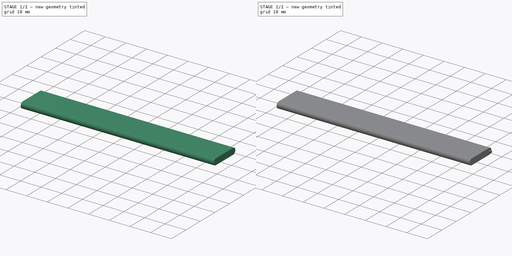
[diagram: build sequence overview — one tinted view per stage of 2, left to right]
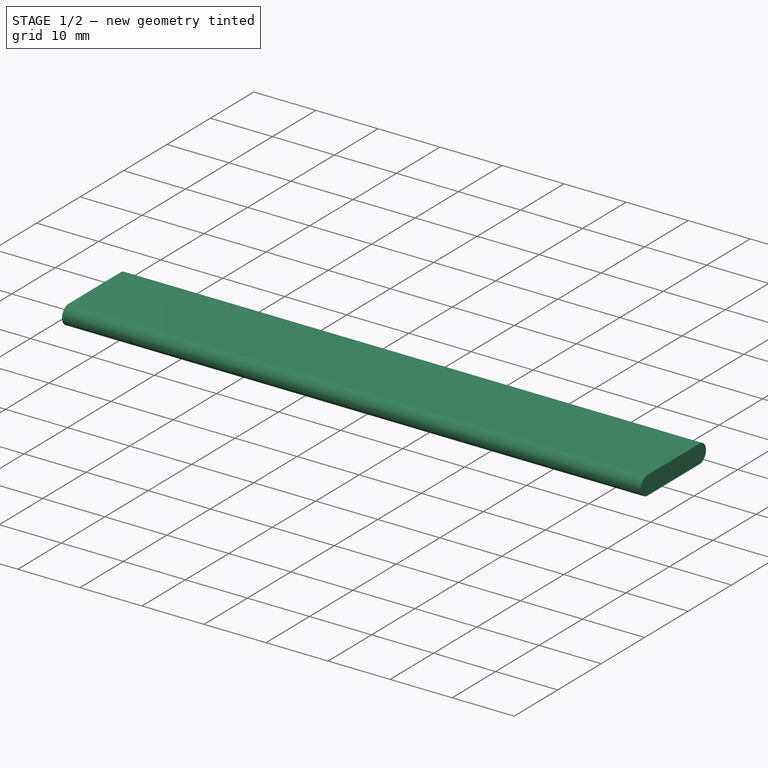
[diagram: stage 1 of 2 — iso view after this stage's code; geometry added in this stage tinted green]
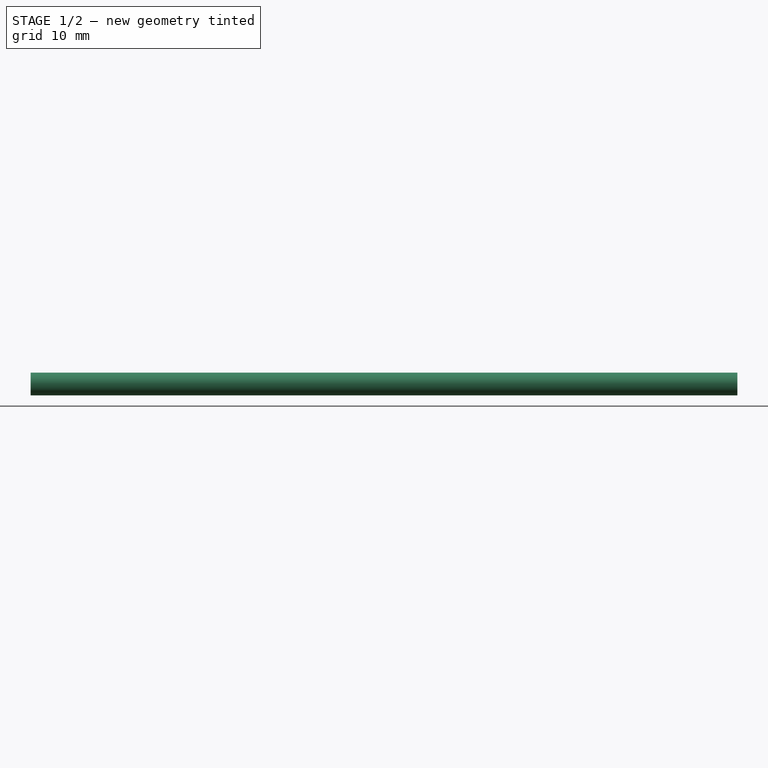
[diagram: stage 1 of 2 — front view after this stage's code; geometry added in this stage tinted green]
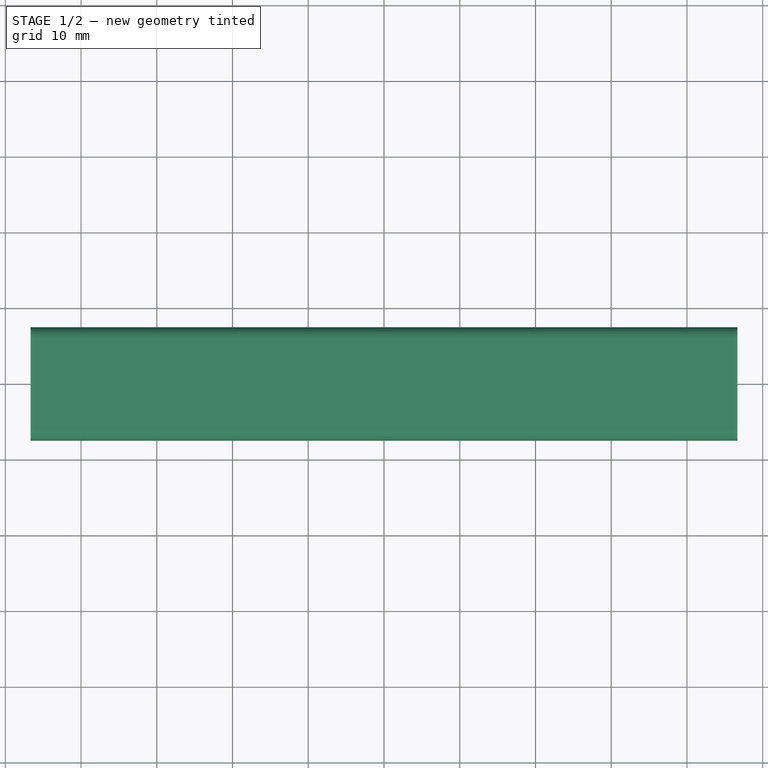
[diagram: stage 1 of 2 — top view after this stage's code; geometry added in this stage tinted green]
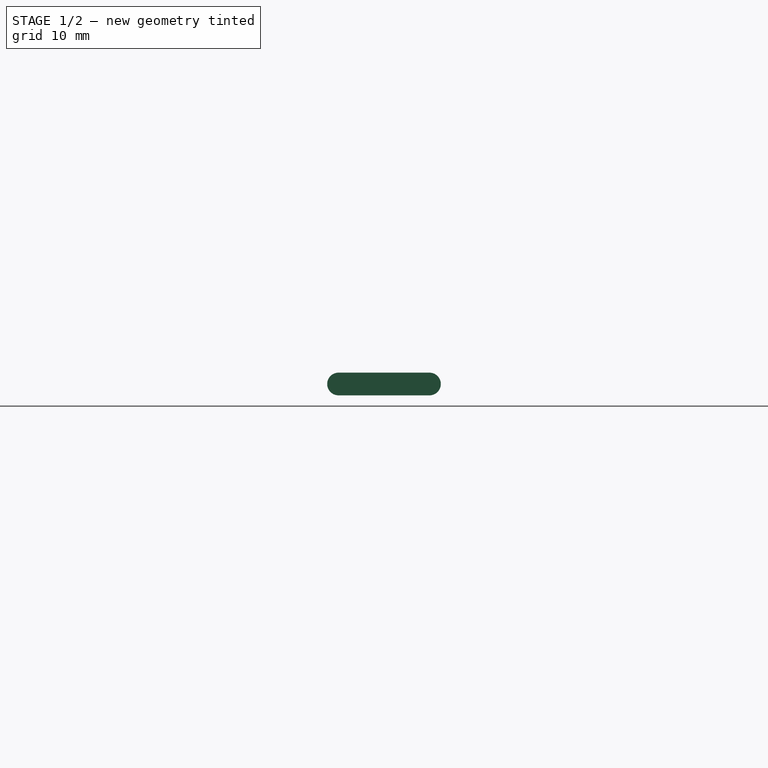
[diagram: stage 1 of 2 — right view after this stage's code; geometry added in this stage tinted green]
FCSTD DOCUMENT  (FreeCAD 0.19R24291 (Git))
Label: HB9500_x10
License: All rights reserved
LicenseURL: http://en.wikipedia.org/wiki/All_rights_reserved
objects: App::Link×11, Sketcher::SketchObject×4, PartDesign::Pad×3, App::DocumentObjectGroup×2, PartDesign::Line×2, PartDesign::CoordinateSystem×1, App::FeaturePython×1, PartDesign::Pocket×1, PartDesign::Body×1, App::Part×1
note: 16 computed .brp shape members not serialized (recipe doc carries the construction recipe); baked Part::Feature solids carry a one-line shape summary decoded from their .brp
EXTERNAL_REF file=parts/left_asm.FCStd obj=LCS_Origin
EXTERNAL_REF file=parts/left_asm.FCStd obj=Model
EXTERNAL_REF file=parts/center_asm.FCStd obj=RightPointC
EXTERNAL_REF file=parts/right_asm.FCStd obj=LeftPointR
EXTERNAL_REF file=parts/right_asm.FCStd obj=Model
EXTERNAL_REF file=parts/left_asm.FCStd obj=CoverAxisL
EXTERNAL_REF file=parts/center_asm.FCStd obj=LeftPointC
EXTERNAL_REF file=parts/left_asm.FCStd obj=RightPointL
EXTERNAL_REF file=parts/center_asm.FCStd obj=Model

FEATURE [PartDesign::CoordinateSystem] LCS_Origin
  AttacherType = Attacher::AttachEngine3D
  MapMode = 2
  Support = -> [X_Axis]
FEATURE [App::DocumentObjectGroup] Constraints
FEATURE [App::FeaturePython] Variables  # WARN: FeaturePython — macro-defined, semantics opaque (R4)
FEATURE [App::Link] left_asm
  AssemblyType = Asm4EE
  AttachedBy = #LCS_Origin
  AttachedTo = Parent Assembly#LCS_Origin
  LinkedObject = -> <external parts/left_asm.FCStd>#Model
  expr: Placement = LCS_Origin.Placement * AttachmentOffset * left_asm#LCS_Origin.Placement ^ -1
FEATURE [App::Link] right_asm
  AssemblyType = Asm4EE
  AttachedBy = #LeftPointR
  AttachedTo = center_asm007#RightPointC
  LinkPlacement = pos=(85.5,-2.833e-13,-1.746e-13) rot=(0,0,1;0rad)
  LinkedObject = -> <external parts/right_asm.FCStd>#Model
  Placement = pos=(85.5,-2.833e-13,-1.746e-13) rot=(0,0,1;0rad)
  expr: Placement = center_asm007.Placement * center_asm#RightPointC.Placement * AttachmentOffset * right_asm#LeftPointR.Placement ^ -1
FEATURE [Sketcher::SketchObject] Sketch
  FullyConstrained = true
  MapMode = 5
  Placement = pos=(0,0,0) rot=(0.57735,0.57735,0.57735;2.0944rad)
  Support = -> [YZ_Plane001]
  sketch-geometry (4):
    g0: LineSegment StartX=-6 StartY=1.5 StartZ=0 EndX=6 EndY=1.5 EndZ=0
    g1: LineSegment StartX=6 StartY=-1.5 StartZ=0 EndX=-6 EndY=-1.5 EndZ=0
    g2: ArcOfCircle CenterX=-6 CenterY=0 CenterZ=0 NormalX=0 NormalY=0 NormalZ=1 AngleXU=0 Radius=1.5 StartAngle=1.5708 EndAngle=4.71239
    g3: ArcOfCircle CenterX=6 CenterY=0 CenterZ=0 NormalX=0 NormalY=0 NormalZ=1 AngleXU=0 Radius=1.5 StartAngle=4.71239 EndAngle=7.85398
  constraints (9):
    c: Horizontal(g0)
    c: Tangent(g2,g0) = 1.5708
    c: Tangent(g2,g1) = 1.5708
    c: Tangent(g0,g3) = 1.5708
    c: Tangent(g1,g3) = 1.5708
    c: Symmetric(g2,g3,g-2)
    c: PointOnObject(g2,g-1)
    c: Radius(g2) = 1.5
    c: DistanceX(g0,g0) = 12
FEATURE [PartDesign::Pad] Pad
  Direction = (1,1,1)
  Length = 93.3
  Length2 = 100
  Midplane = true
  Placement = pos=(0,0,0) rot=(0.57735,0.57735,0.57735;2.0944rad)
  Profile = -> Sketch
  Type = 0
FEATURE [Sketcher::SketchObject] Sketch001
  ExternalGeometry = -> [Pad]
  FullyConstrained = true
  MapMode = 5
  Placement = pos=(6e-16,-8e-16,-1.5) rot=(0.707107,0.707107,0;3.14159rad)
  Support = -> [Pad]
  sketch-geometry (8):
    g0: LineSegment StartX=-4 StartY=45.65 StartZ=0 EndX=4 EndY=45.65 EndZ=0
    g1: LineSegment StartX=4 StartY=45.65 StartZ=0 EndX=4 EndY=-45.65 EndZ=0
    g2: LineSegment StartX=4 StartY=-45.65 StartZ=0 EndX=-4 EndY=-45.65 EndZ=0
    g3: LineSegment StartX=-4 StartY=-45.65 StartZ=0 EndX=-4 EndY=45.65 EndZ=0
    g4: LineSegment StartX=-4 StartY=-45.65 StartZ=0 EndX=-6 EndY=-46.65 EndZ=0
    g5: LineSegment StartX=4 StartY=-45.65 StartZ=0 EndX=6 EndY=-46.65 EndZ=0
    g6: LineSegment StartX=-6 StartY=46.65 StartZ=0 EndX=-4 EndY=45.65 EndZ=0
    g7: LineSegment StartX=6 StartY=46.65 StartZ=0 EndX=4 EndY=45.65 EndZ=0
  constraints (20):
    c: Coincident(g0,g1)
    c: Coincident(g1,g2)
    c: Coincident(g2,g3)
    c: Coincident(g3,g0)
    c: Horizontal(g0)
    c: Horizontal(g2)
    c: Vertical(g1)
    c: Coincident(g4,g2)
    c: Coincident(g4,g-4)
    c: Coincident(g5,g1)
    c: Coincident(g5,g-4)
    c: Coincident(g6,g-3)
    c: Coincident(g6,g0)
    c: Coincident(g7,g-3)
    c: Coincident(g7,g0)
    c: Equal(g4,g5)
    c: Equal(g5,g6)
    c: Equal(g6,g7)
    c: DistanceY(g0,g7) = 1
    c: DistanceX(g6,g0) = 2
FEATURE [PartDesign::Pocket] Pocket
  BaseFeature = -> Pad
  Length = 1.5
  Length2 = 100
  Placement = pos=(0,0,0) rot=(0.57735,0.57735,0.57735;2.0944rad)
  Profile = -> Sketch001
  Type = 0
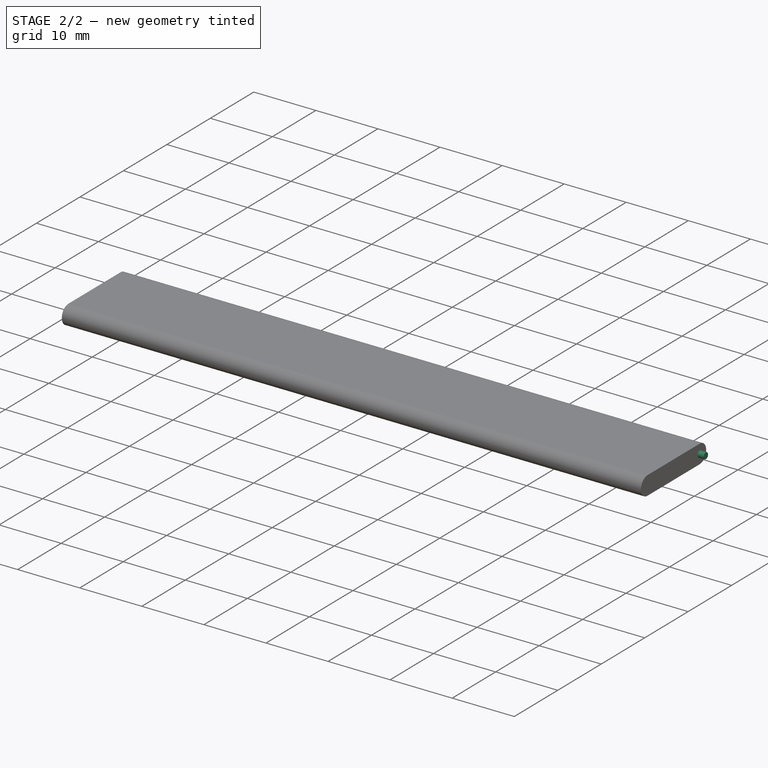
[diagram: stage 2 of 2 — iso view after this stage's code; geometry added in this stage tinted green]
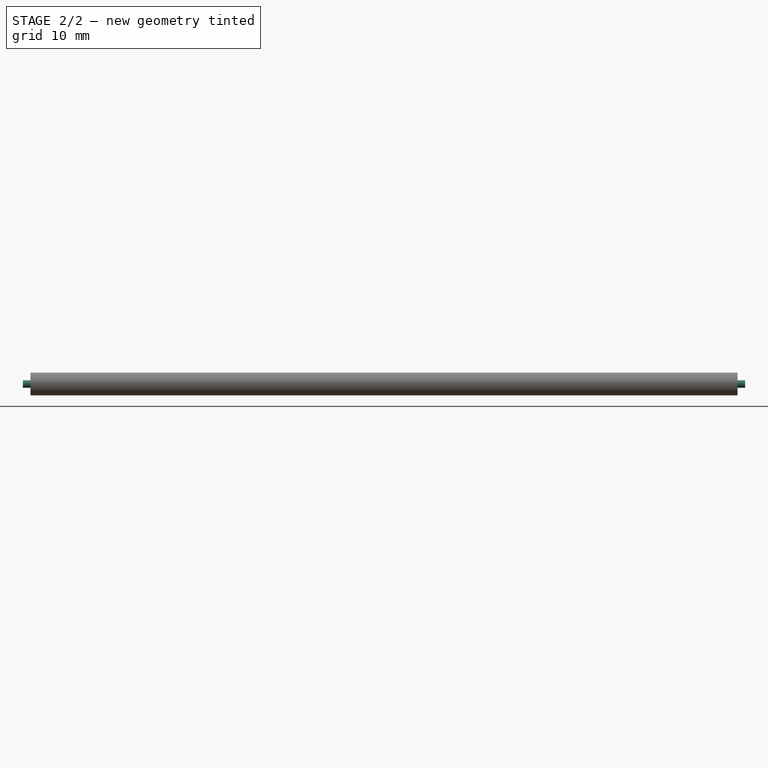
[diagram: stage 2 of 2 — front view after this stage's code; geometry added in this stage tinted green]
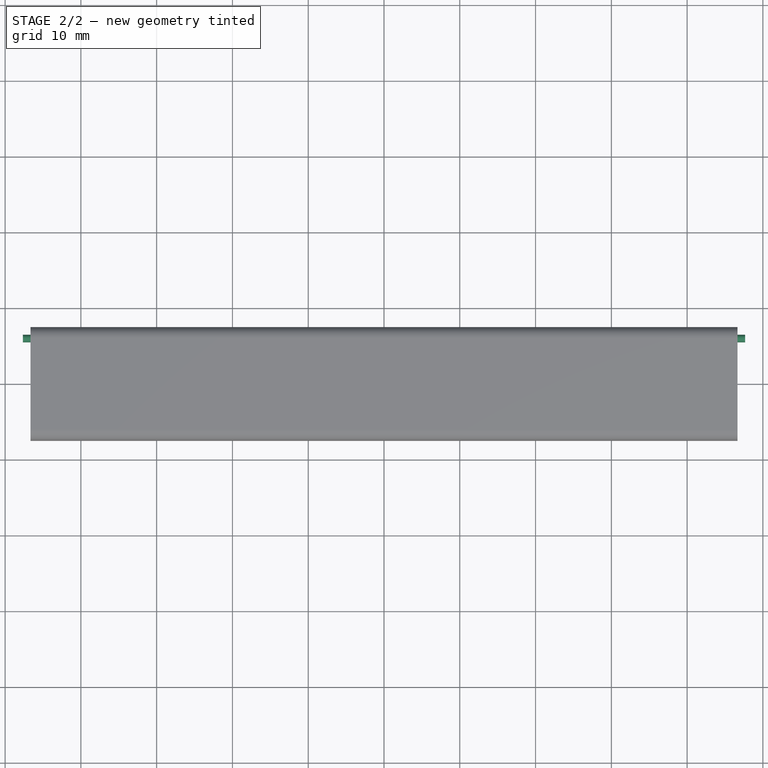
[diagram: stage 2 of 2 — top view after this stage's code; geometry added in this stage tinted green]
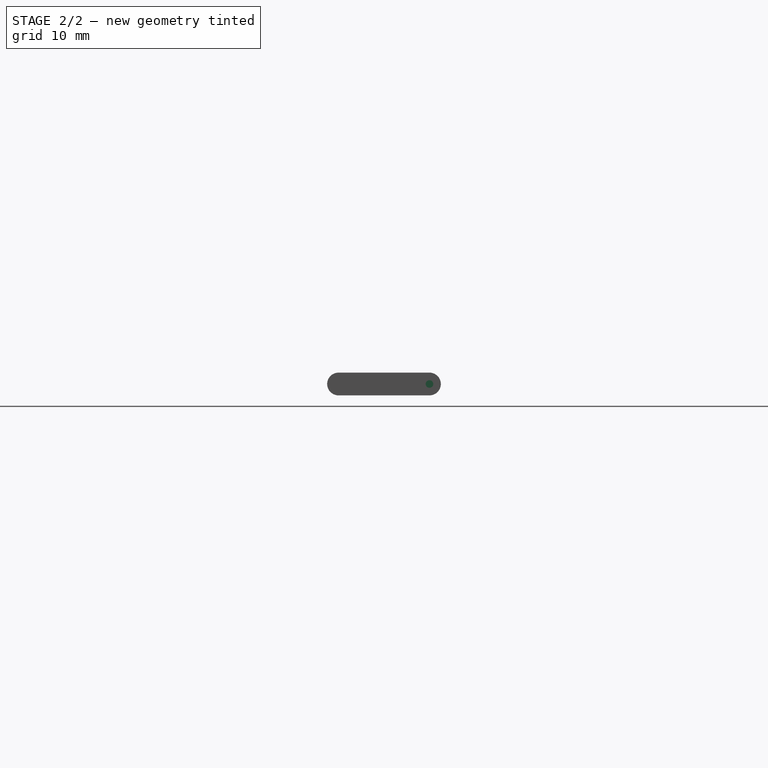
[diagram: stage 2 of 2 — right view after this stage's code; geometry added in this stage tinted green]
FEATURE [Sketcher::SketchObject] Sketch002
  ExternalGeometry = -> [Pocket]
  FullyConstrained = true
  MapMode = 5
  Placement = pos=(-46.65,4.13e-14,-3.1e-14) rot=(-0.57735,-0.57735,0.57735;2.0944rad)
  Support = -> [Pocket]
  sketch-geometry (1):
    g0: Circle CenterX=6 CenterY=0 CenterZ=0 NormalX=0 NormalY=0 NormalZ=1 AngleXU=0 Radius=0.5
  constraints (2):
    c: Coincident(g0,g-3)
    c: Radius(g0) = 0.5
FEATURE [PartDesign::Pad] Pad001
  BaseFeature = -> Pocket
  Direction = (1,1,1)
  Length = 1
  Length2 = 100
  Placement = pos=(0,0,0) rot=(0.57735,0.57735,0.57735;2.0944rad)
  Profile = -> Sketch002
  Type = 0
FEATURE [Sketcher::SketchObject] Sketch003
  ExternalGeometry = -> [Sketch002]
  FullyConstrained = true
  MapMode = 5
  Placement = pos=(46.65,-5.17e-14,3.62e-14) rot=(0.57735,0.57735,0.57735;2.0944rad)
  Support = -> [Pad001]
  sketch-geometry (1):
    g0: Circle CenterX=6 CenterY=0 CenterZ=0 NormalX=0 NormalY=0 NormalZ=1 AngleXU=0 Radius=0.5
  constraints (2):
    c: Coincident(g0,g-3)
    c: Equal(g0,g-3)
FEATURE [PartDesign::Pad] Pad002
  BaseFeature = -> Pad001
  Direction = (1,1,1)
  Length = 1
  Length2 = 100
  Placement = pos=(0,0,0) rot=(0.57735,0.57735,0.57735;2.0944rad)
  Profile = -> Sketch003
  Type = 0
FEATURE [PartDesign::Line] HoleAxis_1
  AttacherType = Attacher::AttachEngineLine
  AttachmentOffset = pos=(0,0,0.1) rot=(0,0,1;0rad)
  Length = 1.40907
  MapMode = 19
  Placement = pos=(-46.75,6,-4.67e-14) rot=(-0.57735,-0.57735,0.57735;2.0944rad)
  ResizeMode = 1
  Support = -> [Pad002]
FEATURE [PartDesign::Line] HoleAxis_2
  AttacherType = Attacher::AttachEngineLine
  AttachmentOffset = pos=(0,0,0.1) rot=(0,0,1;0rad)
  Length = 1.40907
  MapMode = 19
  Placement = pos=(46.75,6,3.93e-14) rot=(0.57735,0.57735,0.57735;2.0944rad)
  ResizeMode = 1
  Support = -> [Pad002]
FEATURE [PartDesign::Body] Body  label="Cover"
  Group = -> [Sketch,Pad,Sketch001,Pocket,Sketch002,Pad001,Sketch003,Pad002,HoleAxis_1,HoleAxis_2]
  Origin = -> Origin001
  Tip = -> Pad002
FEATURE [App::DocumentObjectGroup] Parts
  Group = -> [Body]
FEATURE [App::Link] Cover  label="Cover001"
  AssemblyType = Asm4EE
  AttachedBy = #HoleAxis_1
  AttachedTo = left_asm#CoverAxisL
  LinkPlacement = pos=(42.75,1.725,16.2) rot=(0,0,1;0rad)
  LinkedObject = -> Body
  Placement = pos=(42.75,1.725,16.2) rot=(0,0,1;0rad)
  expr: Placement = left_asm.Placement * left_asm#CoverAxisL.Placement * AttachmentOffset * HoleAxis_1.Placement ^ -1
FEATURE [App::Link] center_asm
  AssemblyType = Asm4EE
  AttachedBy = #LeftPointC
  AttachedTo = left_asm#RightPointL
  LinkPlacement = pos=(9.5,-6.2e-15,-2.5e-15) rot=(0,0,1;0rad)
  LinkedObject = -> <external parts/center_asm.FCStd>#Model
  Placement = pos=(9.5,-6.2e-15,-2.5e-15) rot=(0,0,1;0rad)
  expr: Placement = left_asm.Placement * left_asm#RightPointL.Placement * AttachmentOffset * center_asm#LeftPointC.Placement ^ -1
FEATURE [App::Link] center_asm001
  AssemblyType = Asm4EE
  AttachedBy = #LeftPointC
  AttachedTo = center_asm#RightPointC
  LinkPlacement = pos=(19,-1.87e-14,-9.3e-15) rot=(0,0,1;0rad)
  LinkedObject = -> <external parts/center_asm.FCStd>#Model
  Placement = pos=(19,-1.87e-14,-9.3e-15) rot=(0,0,1;0rad)
  expr: Placement = center_asm.Placement * center_asm#RightPointC.Placement * AttachmentOffset * center_asm#LeftPointC.Placement ^ -1
FEATURE [App::Link] center_asm002
  AssemblyType = Asm4EE
  AttachedBy = #LeftPointC
  AttachedTo = center_asm001#RightPointC
  LinkPlacement = pos=(28.5,-3.73e-14,-2.02e-14) rot=(0,0,1;0rad)
  LinkedObject = -> <external parts/center_asm.FCStd>#Model
  Placement = pos=(28.5,-3.73e-14,-2.02e-14) rot=(0,0,1;0rad)
  expr: Placement = center_asm001.Placement * center_asm#RightPointC.Placement * AttachmentOffset * center_asm#LeftPointC.Placement ^ -1
FEATURE [App::Link] center_asm003
  AssemblyType = Asm4EE
  AttachedBy = #LeftPointC
  AttachedTo = center_asm002#RightPointC
  LinkPlacement = pos=(38,-6.22e-14,-3.54e-14) rot=(0,0,1;0rad)
  LinkedObject = -> <external parts/center_asm.FCStd>#Model
  Placement = pos=(38,-6.22e-14,-3.54e-14) rot=(0,0,1;0rad)
  expr: Placement = center_asm002.Placement * center_asm#RightPointC.Placement * AttachmentOffset * center_asm#LeftPointC.Placement ^ -1
FEATURE [App::Link] center_asm004
  AssemblyType = Asm4EE
  AttachedBy = #LeftPointC
  AttachedTo = center_asm003#RightPointC
  LinkPlacement = pos=(47.5,-9.33e-14,-5.48e-14) rot=(0,0,1;0rad)
  LinkedObject = -> <external parts/center_asm.FCStd>#Model
  Placement = pos=(47.5,-9.33e-14,-5.48e-14) rot=(0,0,1;0rad)
  expr: Placement = center_asm003.Placement * center_asm#RightPointC.Placement * AttachmentOffset * center_asm#LeftPointC.Placement ^ -1
FEATURE [App::Link] center_asm005
  AssemblyType = Asm4EE
  AttachedBy = #LeftPointC
  AttachedTo = center_asm004#RightPointC
  LinkPlacement = pos=(57,-1.315e-13,-7.84e-14) rot=(0,0,1;0rad)
  LinkedObject = -> <external parts/center_asm.FCStd>#Model
  Placement = pos=(57,-1.315e-13,-7.84e-14) rot=(0,0,1;0rad)
  expr: Placement = center_asm004.Placement * center_asm#RightPointC.Placement * AttachmentOffset * center_asm#LeftPointC.Placement ^ -1
FEATURE [App::Link] center_asm006
  AssemblyType = Asm4EE
  AttachedBy = #LeftPointC
  AttachedTo = center_asm005#RightPointC
  LinkPlacement = pos=(66.5,-1.75e-13,-1.063e-13) rot=(0,0,1;0rad)
  LinkedObject = -> <external parts/center_asm.FCStd>#Model
  Placement = pos=(66.5,-1.75e-13,-1.063e-13) rot=(0,0,1;0rad)
  expr: Placement = center_asm005.Placement * center_asm#RightPointC.Placement * AttachmentOffset * center_asm#LeftPointC.Placement ^ -1
FEATURE [App::Link] center_asm007
  AssemblyType = Asm4EE
  AttachedBy = #LeftPointC
  AttachedTo = center_asm006#RightPointC
  LinkPlacement = pos=(76,-2.256e-13,-1.383e-13) rot=(0,0,1;0rad)
  LinkedObject = -> <external parts/center_asm.FCStd>#Model
  Placement = pos=(76,-2.256e-13,-1.383e-13) rot=(0,0,1;0rad)
  expr: Placement = center_asm006.Placement * center_asm#RightPointC.Placement * AttachmentOffset * center_asm#LeftPointC.Placement ^ -1
FEATURE [App::Part] Model  label="HB9500x10"
  Configuration = 0
  Group = -> [LCS_Origin,Constraints,Variables,left_asm,right_asm,Cover,center_asm,center_asm001,center_asm002,center_asm003,center_asm004,center_asm005,center_asm006,center_asm007]
  Origin = -> Origin
  Type = Assembly4 Model
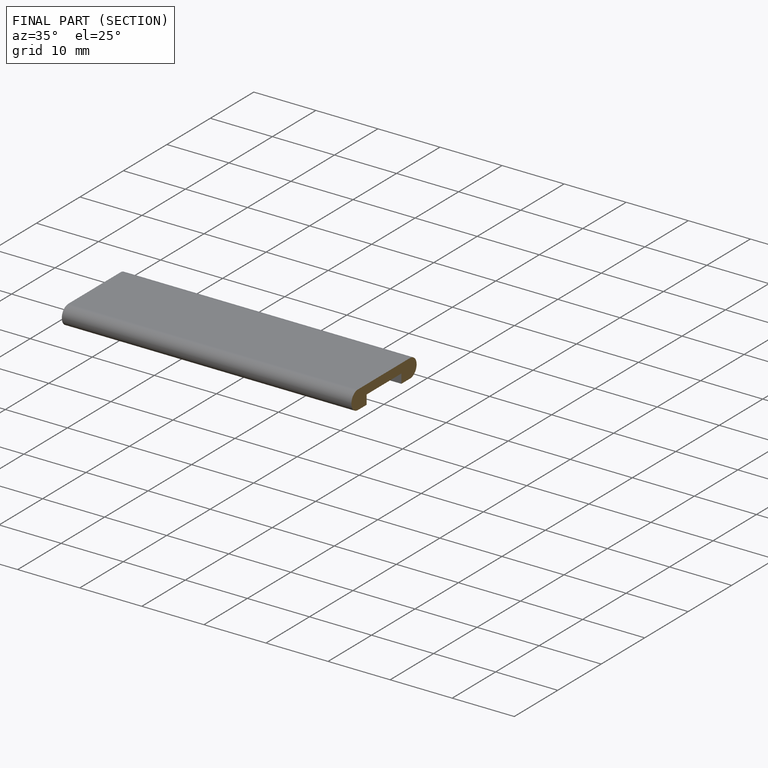
[diagram: finished part — half-section view (interior)]
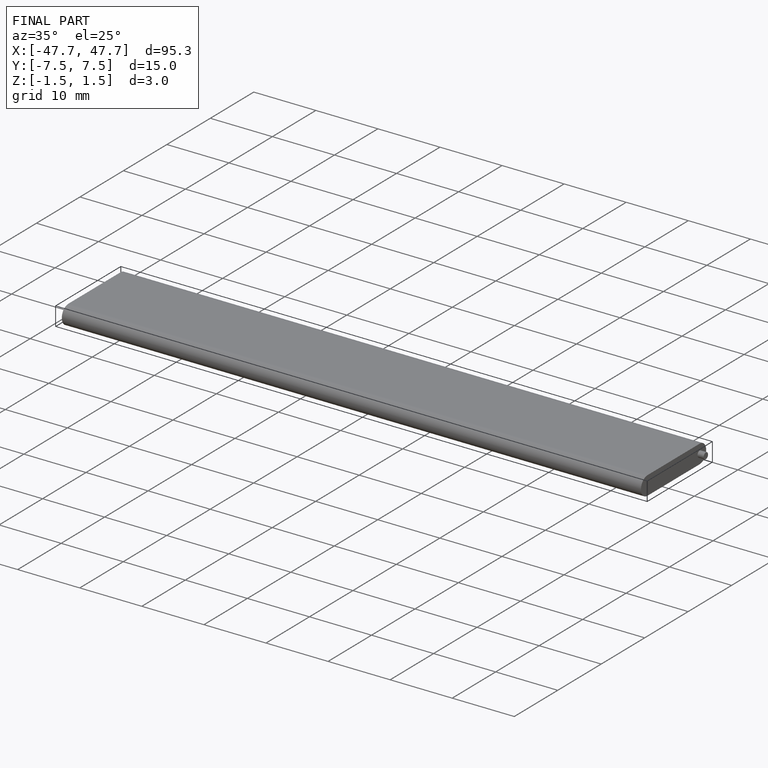
[diagram: finished part — iso view with bounding-box wireframe]
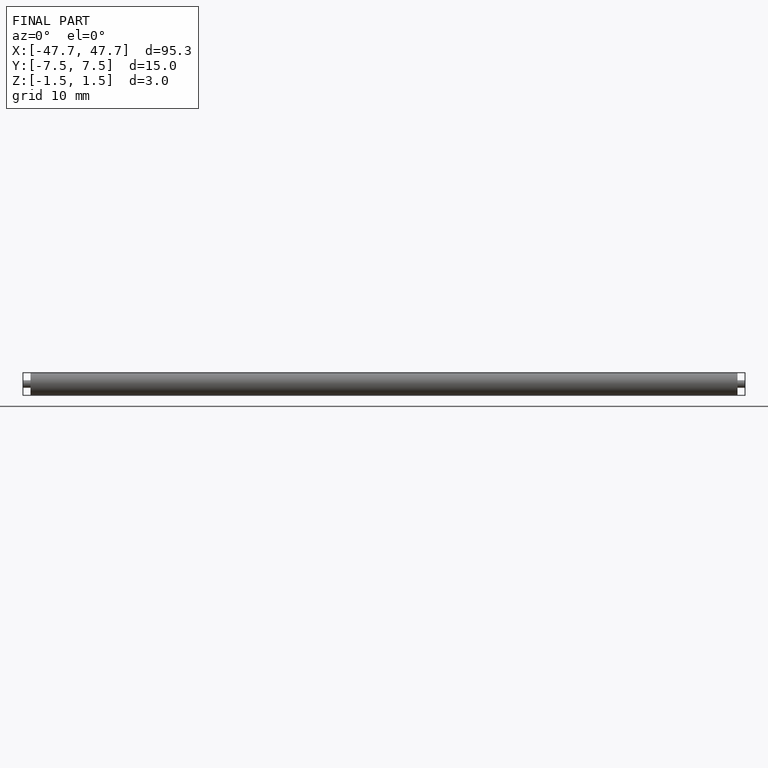
[diagram: finished part — front view with bounding-box wireframe]
